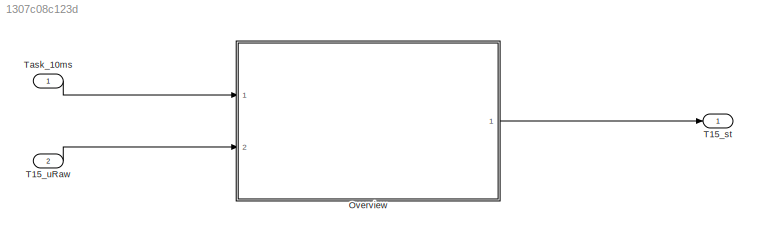
MODEL slx_1307c08c123d
KIND model
CONFIG AbsTol = auto
CONFIG EnableMultiTasking = off
CONFIG FixedStep = auto
CONFIG MaxStep = auto
CONFIG MinStep = auto
CONFIG RelTol = 1e-3
CONFIG SampleTimeConstraint = Unconstrained
CONFIG SolverName = VariableStepAuto
CONFIG StartTime = 0.0
CONFIG StopTime = 10.0
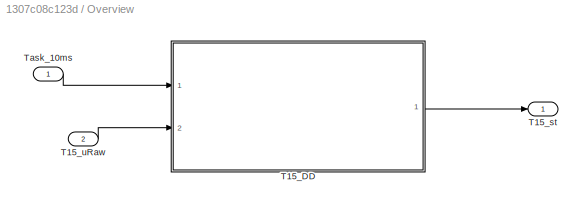
BLOCK [SubSystem] Overview
  Ports = [2, 1]
  RequestExecContextInheritance = off
BLOCK [ModelReference] Overview/T15_DD
  ModelNameDialog = T15_DD
  ModelReferenceVersion = 6.2
  Ports = [2, 1]
  ScheduleRates = on
BLOCK [Outport] Overview/T15_st
  VectorParamsAs1DForOutWhenUnconnected = off
BLOCK [Inport] Overview/T15_uRaw
  Port = 2
BLOCK [Inport] Overview/Task_10ms
BLOCK [Outport] T15_st
BLOCK [Inport] T15_uRaw
  Port = 2
BLOCK [Inport] Task_10ms
  OutputFunctionCall = on
LINE Overview/T15_DD:1 -> Overview/T15_st:1
LINE Overview/T15_uRaw:1 -> Overview/T15_DD:2
LINE Overview/Task_10ms:1 -> Overview/T15_DD:1
LINE Overview:1 -> T15_st:1
LINE T15_uRaw:1 -> Overview:2
LINE Task_10ms:1 -> Overview:1
